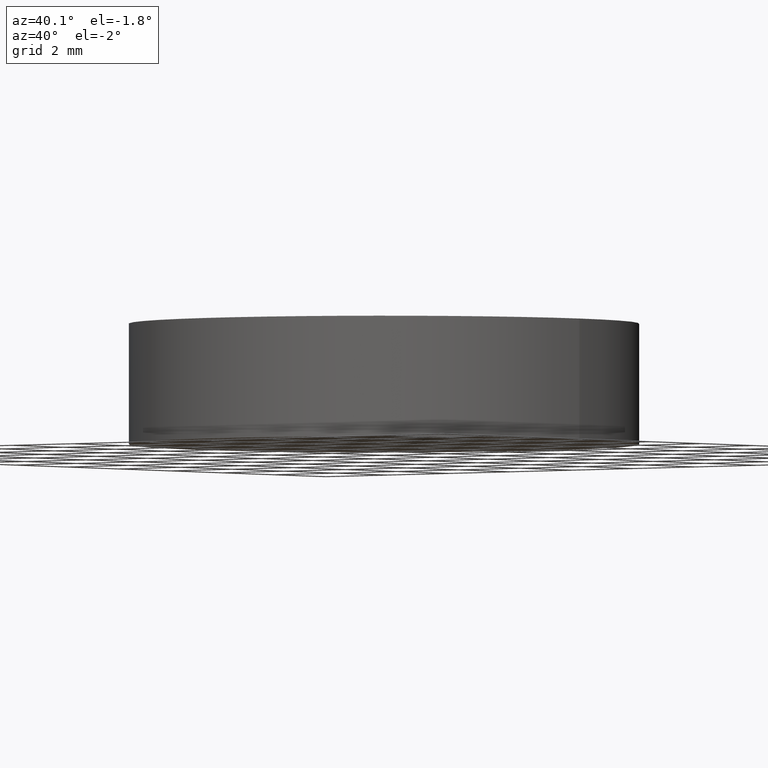
[diagram: clean part render]
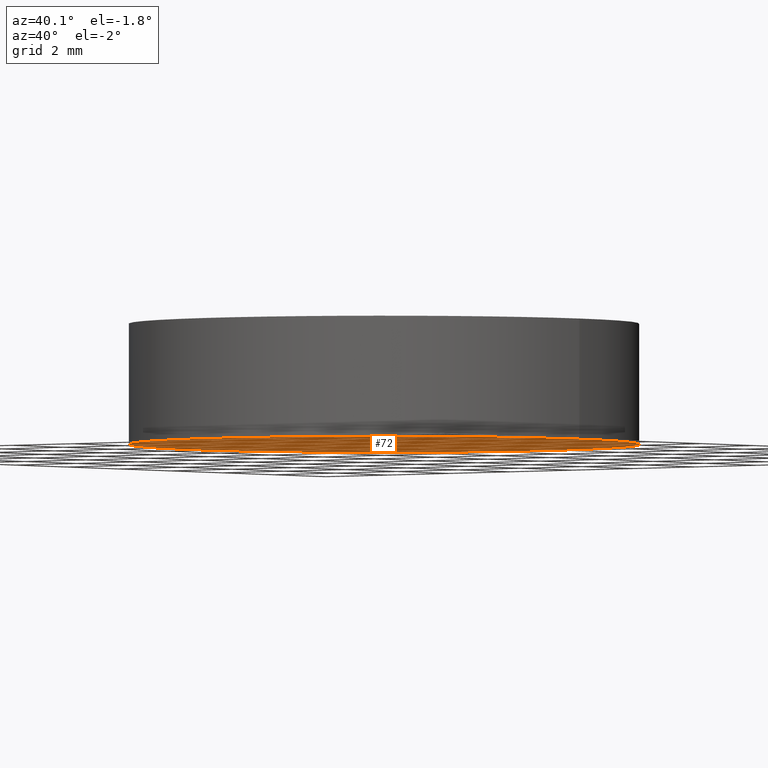
[diagram: same view with one face highlighted and labeled with its STEP entity id]
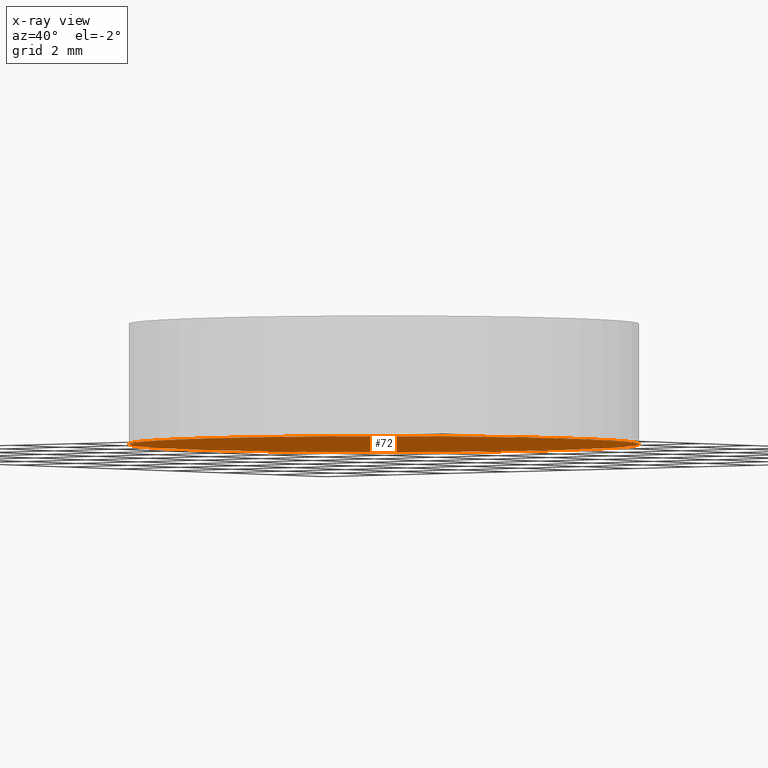
[diagram: x-ray of the same camera — body ghosted, the highlighted face saturated]
A machine part, auxiliary view. The second image highlights one B-rep face of the part: STEP entity #72.
The next image is the same camera in x-ray: the body ghosted, the highlighted face saturated — about 0% of this face is hidden behind the body in this view.
In plain terms, the highlighted planar face has unit normal (0, 0, 1).
Its self-contained STEP definition (entity closure, byte-faithful):
#10 = PLANE ( 'NONE',  #106 ) ;
#18 = CARTESIAN_POINT ( 'NONE',  ( 0.0000000000000000000, 0.0000000000000000000, 0.0000000000000000000 ) ) ;
#20 = VERTEX_POINT ( 'NONE', #140 ) ;
#21 = CIRCLE ( 'NONE', #79, 6.349999999999999600 ) ;
#25 = EDGE_CURVE ( 'NONE', #20, #115, #132, .T. ) ;
#26 = DIRECTION ( 'NONE',  ( 0.0000000000000000000, 0.0000000000000000000, 1.000000000000000000 ) ) ;
#30 = CARTESIAN_POINT ( 'NONE',  ( -6.349999999999999600, 0.0000000000000000000, 0.0000000000000000000 ) ) ;
#33 = DIRECTION ( 'NONE',  ( 1.000000000000000000, 0.0000000000000000000, -0.0000000000000000000 ) ) ;
#46 = CARTESIAN_POINT ( 'NONE',  ( 0.0000000000000000000, 0.0000000000000000000, 0.0000000000000000000 ) ) ;
#51 = DIRECTION ( 'NONE',  ( 0.0000000000000000000, 0.0000000000000000000, 1.000000000000000000 ) ) ;
#71 = ORIENTED_EDGE ( 'NONE', *, *, #94, .F. ) ;
#72 = ADVANCED_FACE ( 'NONE', ( #137 ), #10, .F. ) ;
#79 = AXIS2_PLACEMENT_3D ( 'NONE', #18, #51, #114 ) ;
#87 = AXIS2_PLACEMENT_3D ( 'NONE', #100, #26, #120 ) ;
#92 = EDGE_LOOP ( 'NONE', ( #71, #105 ) ) ;
#94 = EDGE_CURVE ( 'NONE', #115, #20, #21, .T. ) ;
#100 = CARTESIAN_POINT ( 'NONE',  ( 0.0000000000000000000, 0.0000000000000000000, 0.0000000000000000000 ) ) ;
#105 = ORIENTED_EDGE ( 'NONE', *, *, #25, .F. ) ;
#106 = AXIS2_PLACEMENT_3D ( 'NONE', #46, #116, #33 ) ;
#114 = DIRECTION ( 'NONE',  ( 1.000000000000000000, 0.0000000000000000000, 0.0000000000000000000 ) ) ;
#115 = VERTEX_POINT ( 'NONE', #30 ) ;
#116 = DIRECTION ( 'NONE',  ( 0.0000000000000000000, 0.0000000000000000000, 1.000000000000000000 ) ) ;
#120 = DIRECTION ( 'NONE',  ( 1.000000000000000000, 0.0000000000000000000, 0.0000000000000000000 ) ) ;
#132 = CIRCLE ( 'NONE', #87, 6.349999999999999600 ) ;
#137 = FACE_OUTER_BOUND ( 'NONE', #92, .T. ) ;
#140 = CARTESIAN_POINT ( 'NONE',  ( 6.349999999999999600, 7.776507174585692200E-016, 0.0000000000000000000 ) ) ;